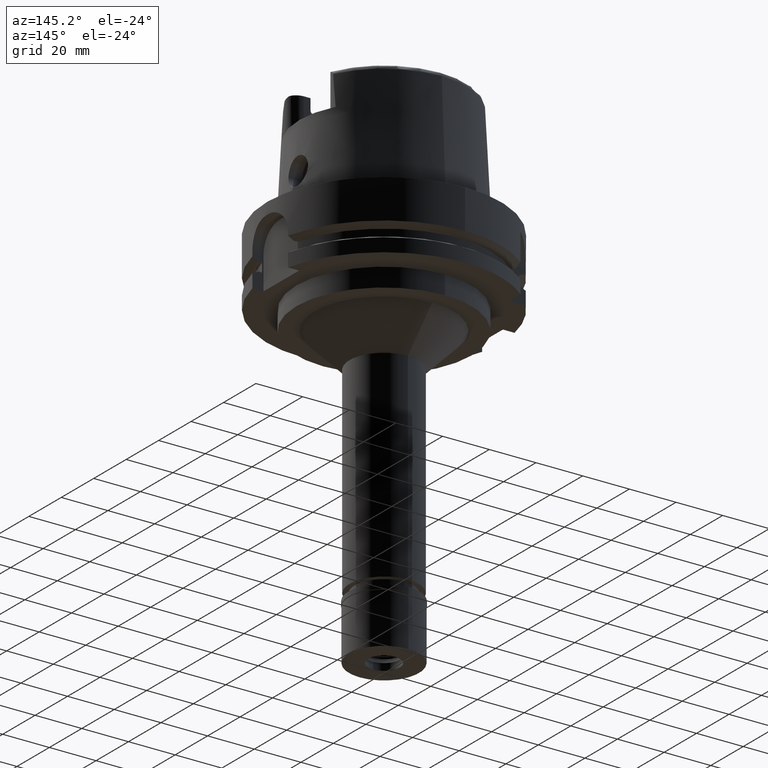
[diagram: clean part render]
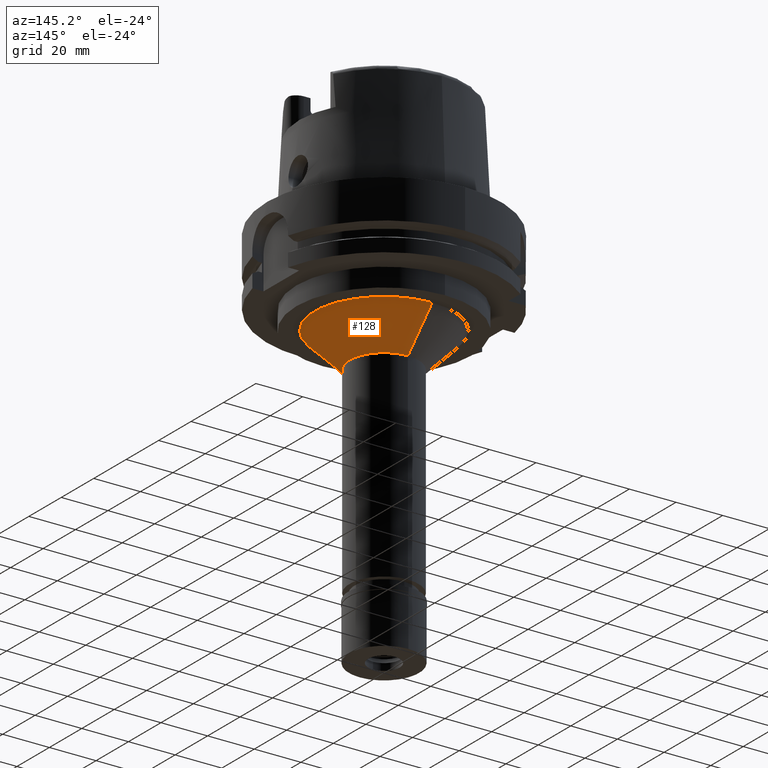
[diagram: same view with one face highlighted and labeled with its STEP entity id]
A machine part, auxiliary view. The second image highlights one B-rep face of the part: STEP entity #128.
In plain terms, the highlighted conical surface has half-angle 45 deg.
Its self-contained STEP definition (entity closure, byte-faithful):
#128 = ADVANCED_FACE ( 'NONE', ( #1206 ), #775, .T. ) ;
#423 = AXIS2_PLACEMENT_3D ( 'NONE', #4225, #3022, #3390 ) ;
#505 = EDGE_CURVE ( 'NONE', #1197, #3529, #963, .T. ) ;
#506 = CARTESIAN_POINT ( 'NONE',  ( 0.0000000000000000000, -14.75000000000000000, -52.00000000000000000 ) ) ;
#775 = CONICAL_SURFACE ( 'NONE', #3006, 22.25000000000000000, 0.7853981633972997312 ) ;
#839 = DIRECTION ( 'NONE',  ( 0.0000000000000000000, 0.0000000000000000000, -1.000000000000000000 ) ) ;
#913 = LINE ( 'NONE', #2185, #1232 ) ;
#963 = CIRCLE ( 'NONE', #4806, 29.75000000000000000 ) ;
#1197 = VERTEX_POINT ( 'NONE', #1854 ) ;
#1206 = FACE_OUTER_BOUND ( 'NONE', #5126, .T. ) ;
#1232 = VECTOR ( 'NONE', #3847, 1000.000000000000114 ) ;
#1237 = CARTESIAN_POINT ( 'NONE',  ( 0.0000000000000000000, 14.75000000000000000, -52.00000000000000000 ) ) ;
#1854 = CARTESIAN_POINT ( 'NONE',  ( 0.0000000000000000000, 29.75000000000000000, -37.00000000000000000 ) ) ;
#1931 = ORIENTED_EDGE ( 'NONE', *, *, #505, .T. ) ;
#2070 = DIRECTION ( 'NONE',  ( 0.0000000000000000000, 0.0000000000000000000, 1.000000000000000000 ) ) ;
#2139 = ORIENTED_EDGE ( 'NONE', *, *, #3707, .T. ) ;
#2172 = EDGE_CURVE ( 'NONE', #1197, #2332, #3289, .T. ) ;
#2185 = CARTESIAN_POINT ( 'NONE',  ( 0.0000000000000000000, -29.75000000000000000, -37.00000000000000000 ) ) ;
#2198 = CIRCLE ( 'NONE', #423, 14.75000000000000000 ) ;
#2332 = VERTEX_POINT ( 'NONE', #1237 ) ;
#2771 = CARTESIAN_POINT ( 'NONE',  ( 0.0000000000000000000, 29.75000000000000000, -37.00000000000000000 ) ) ;
#2891 = EDGE_CURVE ( 'NONE', #2332, #4672, #2198, .T. ) ;
#2915 = CARTESIAN_POINT ( 'NONE',  ( 0.0000000000000000000, 0.0000000000000000000, -44.50000000000000000 ) ) ;
#3006 = AXIS2_PLACEMENT_3D ( 'NONE', #2915, #2070, #4138 ) ;
#3022 = DIRECTION ( 'NONE',  ( 0.0000000000000000000, 0.0000000000000000000, -1.000000000000000000 ) ) ;
#3277 = VECTOR ( 'NONE', #3671, 1000.000000000000114 ) ;
#3289 = LINE ( 'NONE', #2771, #3277 ) ;
#3390 = DIRECTION ( 'NONE',  ( 0.0000000000000000000, 1.000000000000000000, 0.0000000000000000000 ) ) ;
#3529 = VERTEX_POINT ( 'NONE', #5441 ) ;
#3671 = DIRECTION ( 'NONE',  ( 0.0000000000000000000, -0.7071067811865474617, -0.7071067811865474617 ) ) ;
#3707 = EDGE_CURVE ( 'NONE', #3529, #4672, #913, .T. ) ;
#3847 = DIRECTION ( 'NONE',  ( 0.0000000000000000000, 0.7071067811865474617, -0.7071067811865474617 ) ) ;
#3913 = DIRECTION ( 'NONE',  ( 0.0000000000000000000, 1.000000000000000000, 0.0000000000000000000 ) ) ;
#4138 = DIRECTION ( 'NONE',  ( 0.0000000000000000000, 1.000000000000000000, 0.0000000000000000000 ) ) ;
#4225 = CARTESIAN_POINT ( 'NONE',  ( 0.0000000000000000000, 0.0000000000000000000, -52.00000000000000000 ) ) ;
#4231 = ORIENTED_EDGE ( 'NONE', *, *, #2891, .F. ) ;
#4294 = CARTESIAN_POINT ( 'NONE',  ( 0.0000000000000000000, 0.0000000000000000000, -37.00000000000000000 ) ) ;
#4608 = ORIENTED_EDGE ( 'NONE', *, *, #2172, .F. ) ;
#4672 = VERTEX_POINT ( 'NONE', #506 ) ;
#4806 = AXIS2_PLACEMENT_3D ( 'NONE', #4294, #839, #3913 ) ;
#5126 = EDGE_LOOP ( 'NONE', ( #1931, #2139, #4231, #4608 ) ) ;
#5441 = CARTESIAN_POINT ( 'NONE',  ( 0.0000000000000000000, -29.75000000000000000, -37.00000000000000000 ) ) ;